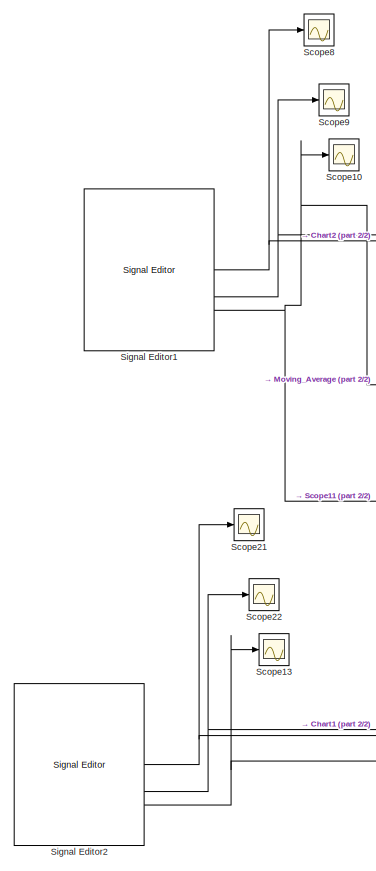
[diagram: root canvas - part 1/2, left side, full height]
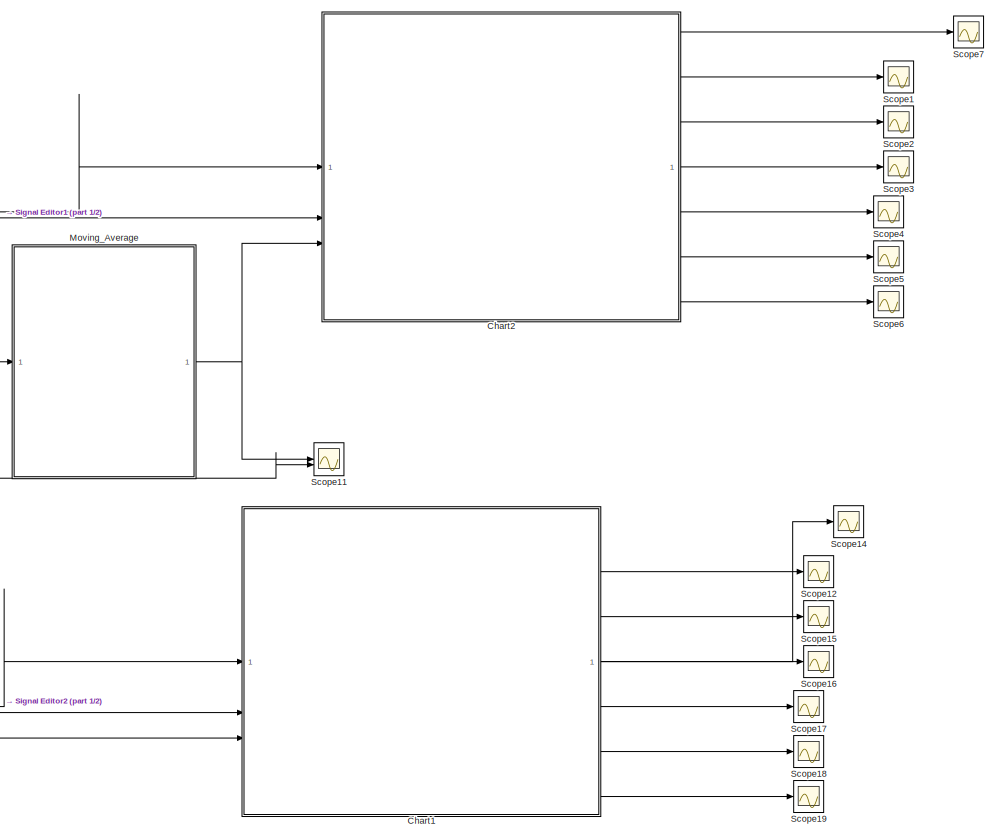
[diagram: root canvas - part 2/2, right side, full height]
MODEL slx_14a2b738661c
KIND model
CONFIG AbsTol = auto
CONFIG EnableMultiTasking = off
CONFIG FixedStep = 0.01
CONFIG MaxStep = auto
CONFIG MinStep = auto
CONFIG RelTol = 1e-3
CONFIG SampleTimeConstraint = Unconstrained
CONFIG SolverName = FixedStepDiscrete
CONFIG StartTime = 0.0
CONFIG StopTime = 3
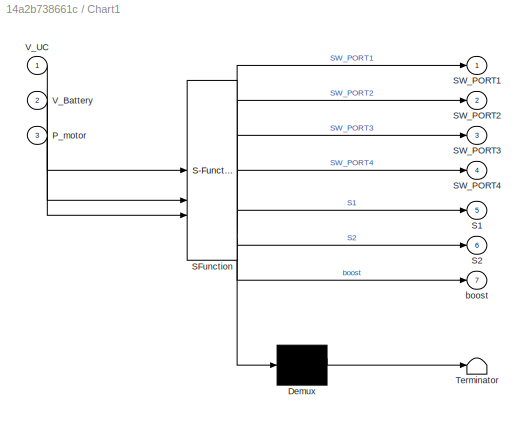
BLOCK [SubSystem] Chart1
  ErrorFcn = Stateflow.Translate.translate
  PermitHierarchicalResolution = ExplicitOnly
  SFBlockType = Chart
  TreatAsAtomicUnit = on
BLOCK [Demux] Chart1/ Demux 
  Outputs = 1
BLOCK [S-Function] Chart1/ SFunction 
  EnableBusSupport = on
  FunctionName = sf_sfun
  PortCounts = [3 8]
  SFcnIsStateOwnerBlock = off
  SFunctionDeploymentMode = off
  Tag = Stateflow S-Function 1
BLOCK [Terminator] Chart1/ Terminator 
BLOCK [Inport] Chart1/P_motor
  Port = 3
BLOCK [Outport] Chart1/S1
  Port = 5
BLOCK [Outport] Chart1/S2
  Port = 6
BLOCK [Outport] Chart1/SW_PORT1
BLOCK [Outport] Chart1/SW_PORT2
  Port = 2
BLOCK [Outport] Chart1/SW_PORT3
  Port = 3
BLOCK [Outport] Chart1/SW_PORT4
  Port = 4
BLOCK [Inport] Chart1/V_Battery
  Port = 2
BLOCK [Inport] Chart1/V_UC
BLOCK [Outport] Chart1/boost
  Port = 7
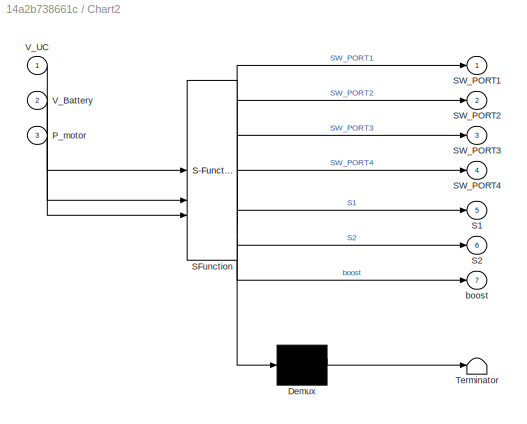
BLOCK [SubSystem] Chart2
  ErrorFcn = Stateflow.Translate.translate
  PermitHierarchicalResolution = ExplicitOnly
  SFBlockType = Chart
  TreatAsAtomicUnit = on
BLOCK [Demux] Chart2/ Demux 
  Outputs = 1
BLOCK [S-Function] Chart2/ SFunction 
  EnableBusSupport = on
  FunctionName = sf_sfun
  PortCounts = [3 8]
  SFcnIsStateOwnerBlock = off
  SFunctionDeploymentMode = off
  Tag = Stateflow S-Function 2
BLOCK [Terminator] Chart2/ Terminator 
BLOCK [Inport] Chart2/P_motor
  Port = 3
BLOCK [Outport] Chart2/S1
  Port = 5
BLOCK [Outport] Chart2/S2
  Port = 6
BLOCK [Outport] Chart2/SW_PORT1
BLOCK [Outport] Chart2/SW_PORT2
  Port = 2
BLOCK [Outport] Chart2/SW_PORT3
  Port = 3
BLOCK [Outport] Chart2/SW_PORT4
  Port = 4
BLOCK [Inport] Chart2/V_Battery
  Port = 2
BLOCK [Inport] Chart2/V_UC
BLOCK [Outport] Chart2/boost
  Port = 7
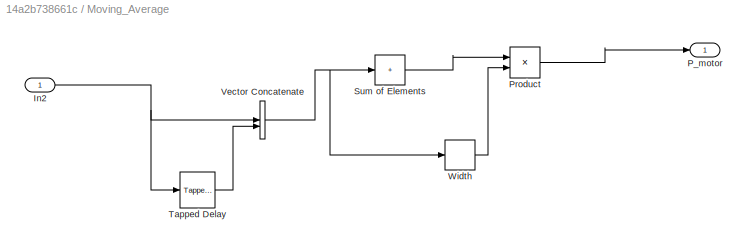
BLOCK [SubSystem] Moving_Average
BLOCK [Inport] Moving_Average/In2
BLOCK [Outport] Moving_Average/P_motor
BLOCK [Product] Moving_Average/Product
  Inputs = */
BLOCK [Sum] Moving_Average/Sum of Elements
  IconShape = rectangular
  Inputs = +
BLOCK [Reference] Moving_Average/Tapped Delay  REF=simulink/Discrete/Tapped Delay
  SourceBlock = simulink/Discrete/Tapped Delay
  SourceType = Tapped Delay Line
BLOCK [Concatenate] Moving_Average/Vector Concatenate
BLOCK [Width] Moving_Average/Width
  AlwaysUseConstantSampleTime = off
  DataType = uint8
BLOCK [Scope] Scope1
  Floating = off
  NumInputPorts = 1
  ScopeSpecificationString = Simulink.scopes.TimeScopeBlockCfg('CurrentConfiguration', extmgr.ConfigurationSet(extmgr.Configuration('Core','General UI',true),extmgr.Configuration('Core','Source UI',true),extmgr.Configuration('Sources','WiredSimulink',true,'DataLoggingVariableName','ScopeData1'),extmgr.Configuration('Visuals','Time Domain',true,'SerializedDisplays',{struct('MinYLimReal','-1.00000','MaxYLimReal','1.00000','YLab...<+1463ch>
BLOCK [Scope] Scope10
  Floating = off
  NumInputPorts = 1
  ScopeSpecificationString = Simulink.scopes.TimeScopeBlockCfg('CurrentConfiguration', extmgr.ConfigurationSet(extmgr.Configuration('Core','General UI',true),extmgr.Configuration('Core','Source UI',true),extmgr.Configuration('Sources','WiredSimulink',true,'DataLoggingVariableName','ScopeData9'),extmgr.Configuration('Visuals','Time Domain',true,'SerializedDisplays',{struct('MinYLimReal','-33022.83078','MaxYLimReal','60760.3145...<+1535ch>
BLOCK [Scope] Scope11
  Floating = off
  NumInputPorts = 2
  ScopeSpecificationString = Simulink.scopes.TimeScopeBlockCfg('CurrentConfiguration', extmgr.ConfigurationSet(extmgr.Configuration('Core','General UI',true,'FigureColor',[0 0 0]),extmgr.Configuration('Core','Source UI',true),extmgr.Configuration('Sources','WiredSimulink',true,'DataLoggingVariableName','ScopeData1'),extmgr.Configuration('Visuals','Time Domain',true,'SerializedDisplays',{struct('MinYLimReal','-33022.83078','Ma...<+1770ch>
BLOCK [Scope] Scope12
  Floating = off
  NumInputPorts = 1
  ScopeSpecificationString = Simulink.scopes.TimeScopeBlockCfg('CurrentConfiguration', extmgr.ConfigurationSet(extmgr.Configuration('Core','General UI',true),extmgr.Configuration('Core','Source UI',true),extmgr.Configuration('Sources','WiredSimulink',true,'DataLoggingVariableName','ScopeData2'),extmgr.Configuration('Visuals','Time Domain',true,'SerializedDisplays',{struct('MinYLimReal','-1.00000','MaxYLimReal','1.00000','YLab...<+1463ch>
BLOCK [Scope] Scope13
  Floating = off
  NumInputPorts = 1
  ScopeSpecificationString = Simulink.scopes.TimeScopeBlockCfg('CurrentConfiguration', extmgr.ConfigurationSet(extmgr.Configuration('Core','General UI',true),extmgr.Configuration('Core','Source UI',true),extmgr.Configuration('Sources','WiredSimulink',true,'DataLoggingVariableName','ScopeData3'),extmgr.Configuration('Visuals','Time Domain',true,'SerializedDisplays',{struct('MinYLimReal','-33022.83078','MaxYLimReal','60760.3145...<+1535ch>
BLOCK [Scope] Scope14
  Floating = off
  NumInputPorts = 1
  ScopeSpecificationString = Simulink.scopes.TimeScopeBlockCfg('CurrentConfiguration', extmgr.ConfigurationSet(extmgr.Configuration('Core','General UI',true),extmgr.Configuration('Core','Source UI',true),extmgr.Configuration('Sources','WiredSimulink',true,'DataLoggingVariableName','ScopeData2'),extmgr.Configuration('Visuals','Time Domain',true,'SerializedDisplays',{struct('MinYLimReal','-0.125','MaxYLimReal','1.125','YLabelRe...<+1451ch>
BLOCK [Scope] Scope15
  Floating = off
  NumInputPorts = 1
  ScopeSpecificationString = Simulink.scopes.TimeScopeBlockCfg('CurrentConfiguration', extmgr.ConfigurationSet(extmgr.Configuration('Core','General UI',true),extmgr.Configuration('Core','Source UI',true),extmgr.Configuration('Sources','WiredSimulink',true,'DataLoggingVariableName','ScopeData5'),extmgr.Configuration('Visuals','Time Domain',true,'SerializedDisplays',{struct('MinYLimReal','-0.125','MaxYLimReal','1.125','YLabelRe...<+1450ch>
BLOCK [Scope] Scope16
  Floating = off
  NumInputPorts = 1
  ScopeSpecificationString = Simulink.scopes.TimeScopeBlockCfg('CurrentConfiguration', extmgr.ConfigurationSet(extmgr.Configuration('Core','General UI',true),extmgr.Configuration('Core','Source UI',true),extmgr.Configuration('Sources','WiredSimulink',true,'DataLoggingVariableName','ScopeData6'),extmgr.Configuration('Visuals','Time Domain',true,'SerializedDisplays',{struct('MinYLimReal','-1.00000','MaxYLimReal','1.00000','YLab...<+1463ch>
BLOCK [Scope] Scope17
  Floating = off
  NumInputPorts = 1
  ScopeSpecificationString = Simulink.scopes.TimeScopeBlockCfg('CurrentConfiguration', extmgr.ConfigurationSet(extmgr.Configuration('Core','General UI',true),extmgr.Configuration('Core','Source UI',true),extmgr.Configuration('Sources','WiredSimulink',true,'DataLoggingVariableName','ScopeData7'),extmgr.Configuration('Visuals','Time Domain',true,'SerializedDisplays',{struct('MinYLimReal','-0.125','MaxYLimReal','1.125','YLabelRe...<+1478ch>
BLOCK [Scope] Scope18
  Floating = off
  NumInputPorts = 1
  ScopeSpecificationString = Simulink.scopes.TimeScopeBlockCfg('CurrentConfiguration', extmgr.ConfigurationSet(extmgr.Configuration('Core','General UI',true),extmgr.Configuration('Core','Source UI',true),extmgr.Configuration('Sources','WiredSimulink',true,'DataLoggingVariableName','ScopeData8'),extmgr.Configuration('Visuals','Time Domain',true,'SerializedDisplays',{struct('MinYLimReal','-0.125','MaxYLimReal','1.125','YLabelRe...<+1478ch>
BLOCK [Scope] Scope19
  Floating = off
  NumInputPorts = 1
  ScopeSpecificationString = Simulink.scopes.TimeScopeBlockCfg('CurrentConfiguration', extmgr.ConfigurationSet(extmgr.Configuration('Core','General UI',true),extmgr.Configuration('Core','Source UI',true),extmgr.Configuration('Sources','WiredSimulink',true,'DataLoggingVariableName','ScopeData9'),extmgr.Configuration('Visuals','Time Domain',true,'SerializedDisplays',{struct('MinYLimReal','-0.125','MaxYLimReal','1.125','YLabelRe...<+1448ch>
BLOCK [Scope] Scope2
  Floating = off
  NumInputPorts = 1
  ScopeSpecificationString = Simulink.scopes.TimeScopeBlockCfg('CurrentConfiguration', extmgr.ConfigurationSet(extmgr.Configuration('Core','General UI',true),extmgr.Configuration('Core','Source UI',true),extmgr.Configuration('Sources','WiredSimulink',true,'DataLoggingVariableName','ScopeData2'),extmgr.Configuration('Visuals','Time Domain',true,'SerializedDisplays',{struct('MinYLimReal','-0.125','MaxYLimReal','1.125','YLabelRe...<+1451ch>
BLOCK [Scope] Scope21
  Floating = off
  NumInputPorts = 1
  ScopeSpecificationString = Simulink.scopes.TimeScopeBlockCfg('CurrentConfiguration', extmgr.ConfigurationSet(extmgr.Configuration('Core','General UI',true),extmgr.Configuration('Core','Source UI',true),extmgr.Configuration('Sources','WiredSimulink',true,'DataLoggingVariableName','ScopeData11'),extmgr.Configuration('Visuals','Time Domain',true,'SerializedDisplays',{struct('MinYLimReal','-47.75','MaxYLimReal','429.75','YLabel...<+1468ch>
BLOCK [Scope] Scope22
  Floating = off
  NumInputPorts = 1
  ScopeSpecificationString = Simulink.scopes.TimeScopeBlockCfg('CurrentConfiguration', extmgr.ConfigurationSet(extmgr.Configuration('Core','General UI',true),extmgr.Configuration('Core','Source UI',true),extmgr.Configuration('Sources','WiredSimulink',true,'DataLoggingVariableName','ScopeData12'),extmgr.Configuration('Visuals','Time Domain',true,'SerializedDisplays',{struct('MinYLimReal','-58.25716','MaxYLimReal','524.31441','...<+1481ch>
BLOCK [Scope] Scope3
  Floating = off
  NumInputPorts = 1
  ScopeSpecificationString = Simulink.scopes.TimeScopeBlockCfg('CurrentConfiguration', extmgr.ConfigurationSet(extmgr.Configuration('Core','General UI',true),extmgr.Configuration('Core','Source UI',true),extmgr.Configuration('Sources','WiredSimulink',true,'DataLoggingVariableName','ScopeData3'),extmgr.Configuration('Visuals','Time Domain',true,'SerializedDisplays',{struct('MinYLimReal','-1.00000','MaxYLimReal','1.00000','YLab...<+1463ch>
BLOCK [Scope] Scope4
  Floating = off
  NumInputPorts = 1
  ScopeSpecificationString = Simulink.scopes.TimeScopeBlockCfg('CurrentConfiguration', extmgr.ConfigurationSet(extmgr.Configuration('Core','General UI',true),extmgr.Configuration('Core','Source UI',true),extmgr.Configuration('Sources','WiredSimulink',true,'DataLoggingVariableName','ScopeData4'),extmgr.Configuration('Visuals','Time Domain',true,'SerializedDisplays',{struct('MinYLimReal','-0.125','MaxYLimReal','1.125','YLabelRe...<+1478ch>
BLOCK [Scope] Scope5
  Floating = off
  NumInputPorts = 1
  ScopeSpecificationString = Simulink.scopes.TimeScopeBlockCfg('CurrentConfiguration', extmgr.ConfigurationSet(extmgr.Configuration('Core','General UI',true),extmgr.Configuration('Core','Source UI',true),extmgr.Configuration('Sources','WiredSimulink',true,'DataLoggingVariableName','ScopeData5'),extmgr.Configuration('Visuals','Time Domain',true,'SerializedDisplays',{struct('MinYLimReal','-0.125','MaxYLimReal','1.125','YLabelRe...<+1478ch>
BLOCK [Scope] Scope6
  Floating = off
  NumInputPorts = 1
  ScopeSpecificationString = Simulink.scopes.TimeScopeBlockCfg('CurrentConfiguration', extmgr.ConfigurationSet(extmgr.Configuration('Core','General UI',true),extmgr.Configuration('Core','Source UI',true),extmgr.Configuration('Sources','WiredSimulink',true,'DataLoggingVariableName','ScopeData6'),extmgr.Configuration('Visuals','Time Domain',true,'SerializedDisplays',{struct('MinYLimReal','-0.125','MaxYLimReal','1.125','YLabelRe...<+1448ch>
BLOCK [Scope] Scope7
  Floating = off
  NumInputPorts = 1
  ScopeSpecificationString = Simulink.scopes.TimeScopeBlockCfg('CurrentConfiguration', extmgr.ConfigurationSet(extmgr.Configuration('Core','General UI',true),extmgr.Configuration('Core','Source UI',true),extmgr.Configuration('Sources','WiredSimulink',true,'DataLoggingVariableName','ScopeData1'),extmgr.Configuration('Visuals','Time Domain',true,'SerializedDisplays',{struct('MinYLimReal','-0.125','MaxYLimReal','1.125','YLabelRe...<+1482ch>
BLOCK [Scope] Scope8
  Floating = off
  NumInputPorts = 1
  ScopeSpecificationString = Simulink.scopes.TimeScopeBlockCfg('CurrentConfiguration', extmgr.ConfigurationSet(extmgr.Configuration('Core','General UI',true),extmgr.Configuration('Core','Source UI',true),extmgr.Configuration('Sources','WiredSimulink',true,'DataLoggingVariableName','ScopeData7'),extmgr.Configuration('Visuals','Time Domain',true,'SerializedDisplays',{struct('MinYLimReal','-47.75','MaxYLimReal','429.75','YLabelR...<+1467ch>
BLOCK [Scope] Scope9
  Floating = off
  NumInputPorts = 1
  ScopeSpecificationString = Simulink.scopes.TimeScopeBlockCfg('CurrentConfiguration', extmgr.ConfigurationSet(extmgr.Configuration('Core','General UI',true),extmgr.Configuration('Core','Source UI',true),extmgr.Configuration('Sources','WiredSimulink',true,'DataLoggingVariableName','ScopeData8'),extmgr.Configuration('Visuals','Time Domain',true,'SerializedDisplays',{struct('MinYLimReal','-58.25716','MaxYLimReal','524.31441','Y...<+1480ch>
BLOCK [Reference] Signal Editor1  REF=SignalEditorBlockLib/Signal Editor
  LibrarySourceBlock = simulink/Sources/Signal Editor
  SourceBlock = SignalEditorBlockLib/Signal Editor
  SourceType = SignalEditor
  UserDataPersistent = on
BLOCK [Reference] Signal Editor2  REF=SignalEditorBlockLib/Signal Editor
  LibrarySourceBlock = simulink/Sources/Signal Editor
  SourceBlock = SignalEditorBlockLib/Signal Editor
  SourceType = SignalEditor
  UserDataPersistent = on
LINE Chart1:1 -> Scope14:1
LINE Chart1:2 -> Scope12:1
LINE Chart1:3 -> Scope15:1
LINE Chart1:4 -> Scope16:1
LINE Chart1:5 -> Scope17:1
LINE Chart1:6 -> Scope18:1
LINE Chart1:7 -> Scope19:1
LINE Chart2:1 -> Scope7:1
LINE Chart2:2 -> Scope1:1
LINE Chart2:3 -> Scope2:1
LINE Chart2:4 -> Scope3:1
LINE Chart2:5 -> Scope4:1
LINE Chart2:6 -> Scope5:1
LINE Chart2:7 -> Scope6:1
NET Moving_Average/In2:1 -> Moving_Average/Tapped Delay:1, Moving_Average/Vector Concatenate:1
LINE Moving_Average/Product:1 -> Moving_Average/P_motor:1
LINE Moving_Average/Sum of Elements:1 -> Moving_Average/Product:1
LINE Moving_Average/Tapped Delay:1 -> Moving_Average/Vector Concatenate:2
NET Moving_Average/Vector Concatenate:1 -> Moving_Average/Sum of Elements:1, Moving_Average/Width:1
LINE Moving_Average/Width:1 -> Moving_Average/Product:2
NET Moving_Average:1 -> Chart2:3, Scope11:1
NET Signal Editor1:1 -> Chart2:2, Scope8:1
NET Signal Editor1:2 -> Chart2:1, Scope9:1
NET Signal Editor1:3 -> Moving_Average:1, Scope10:1, Scope11:2
NET Signal Editor2:1 -> Chart1:2, Scope21:1
NET Signal Editor2:2 -> Chart1:1, Scope22:1
NET Signal Editor2:3 -> Chart1:3, Scope13:1
note: NET lines group one-source signal fan-out (src -> all destinations, sorted); 1:1 wires keep LINE
CHART Chart1 states=15 transitions=27
  STATE_LABEL 'Rule_Based'
  STATE_LABEL 'Start'
  STATE_LABEL 'P_motor'
  STATE_LABEL 'V_UC_V_UP_UC'
  STATE_LABEL 'PURE_UC_RECOVER_MODE\nS1=1;\nS2=0;\nboost=0;\nSW_PORT1=0;\nSW_PORT2=0;\nSW_PORT3=0;\nSW_PORT4=0;\n'
  STATE_LABEL 'Hybrid_UC_BATTERY_RECOVER_MODE\nS1=1;\nS2=1;\nboost=0;\nSW_PORT1=0;\nSW_PORT2=0;\nSW_PORT3=1;\nSW_PORT4=0;\n'
  STATE_LABEL 'P_motor_and_P_Low_battery\n'
  STATE_LABEL 'V_UC_V_Target_low_UC'
  STATE_LABEL 'LOW_POWER_DRIVING_AND_CHARGING_MODE\nS1=0;\nS2=1;\nboost=1;\nSW_PORT1=1;\nSW_PORT2=0;\nSW_PORT3=0;\nSW_PORT4=1;\n'
  STATE_LABEL 'V_UC_V_UP_UC1'
  STATE_LABEL 'PURE_BATTERY_DRIVING_MODE\nS1=0;\nS2=1;\nboost=0;\nSW_PORT1=0;\nSW_PORT2=0;\nSW_PORT3=0;\nSW_PORT4=0;'
  STATE_LABEL 'V_UC_and_V_target_low_UC\n'
  STATE_LABEL 'PURE_UC_DRIVING_MODE\nS2=0;\nS1=1;\nboost=0;\nSW_PORT1=0;\nSW_PORT2=0;\nSW_PORT3=0;\nSW_PORT4=0;'
  STATE_LABEL 'HYBRID_BATTERY_UC_DRIVING_MODE\nS1=1;\nS2=1;\nboost=1;\nSW_PORT1=1;\nSW_PORT2=0;\nSW_PORT3=0;\nSW_PORT4=0;'
  STATE_LABEL 'V_UC_and_V_UP_UC'
CHART Chart2 states=15 transitions=27
  STATE_LABEL 'Rule_Based'
  STATE_LABEL 'Start'
  STATE_LABEL 'P_motor'
  STATE_LABEL 'V_UC_V_UP_UC'
  STATE_LABEL 'PURE_UC_RECOVER_MODE\nS1=1;\nS2=0;\nboost=0;\nSW_PORT1=0;\nSW_PORT2=0;\nSW_PORT3=0;\nSW_PORT4=0;\n'
  STATE_LABEL 'Hybrid_UC_BATTERY_RECOVER_MODE\nS1=1;\nS2=1;\nboost=0;\nSW_PORT1=0;\nSW_PORT2=0;\nSW_PORT3=1;\nSW_PORT4=0;\n'
  STATE_LABEL 'P_motor_and_P_Low_battery\n'
  STATE_LABEL 'V_UC_V_Target_low_UC'
  STATE_LABEL 'LOW_POWER_DRIVING_AND_CHARGING_MODE\nS1=0;\nS2=1;\nboost=1;\nSW_PORT1=1;\nSW_PORT2=0;\nSW_PORT3=0;\nSW_PORT4=1;\n'
  STATE_LABEL 'V_UC_V_UP_UC1'
  STATE_LABEL 'PURE_BATTERY_DRIVING_MODE\nS1=0;\nS2=1;\nboost=0;\nSW_PORT1=0;\nSW_PORT2=0;\nSW_PORT3=0;\nSW_PORT4=0;'
  STATE_LABEL 'V_UC_and_V_target_low_UC\n'
  STATE_LABEL 'PURE_UC_DRIVING_MODE\nS2=0;\nS1=1;\nboost=0;\nSW_PORT1=0;\nSW_PORT2=0;\nSW_PORT3=0;\nSW_PORT4=0;'
  STATE_LABEL 'HYBRID_BATTERY_UC_DRIVING_MODE\nS1=1;\nS2=1;\nboost=1;\nSW_PORT1=1;\nSW_PORT2=0;\nSW_PORT3=0;\nSW_PORT4=0;'
  STATE_LABEL 'V_UC_and_V_UP_UC'
CHART  states=0 transitions=0
CHART  states=0 transitions=0
